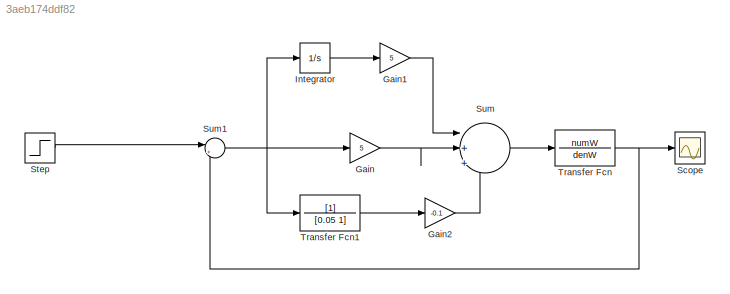
MODEL slx_3aeb174ddf82
KIND model
CONFIG AbsTol = auto
CONFIG EnableMultiTasking = off
CONFIG FixedStep = auto
CONFIG MaxStep = auto
CONFIG MinStep = auto
CONFIG RelTol = 1e-3
CONFIG SampleTimeConstraint = Unconstrained
CONFIG SolverName = VariableStepAuto
CONFIG StartTime = 0.0
CONFIG StopTime = 10.0
BLOCK [Gain] Gain
  Gain = 5
BLOCK [Gain] Gain1
  Gain = 5
BLOCK [Gain] Gain2
  Gain = -0.1
BLOCK [Integrator] Integrator
BLOCK [Scope] Scope
  ActiveDisplayYMaximum = 20.491741588524221
  ActiveDisplayYMinimum = -2.3505327164044716
  Floating = off
  GraphicalSettings = {"Style":{"BackgroundColor":[0.12941176470588237,0.12941176470588237,0.12941176470588237],"AxesColor":[0.07058823529411765,0.07058823529411765,0.07058823529411765],"LabelsColor":[0.8509803921568627,0.8509803921568627,0.8509803921568627],"PreserveColors":false,"Visible":[true],"LineStyle":["-"],"LineWidth":[1.5],"BarWidth":[0.9],"LineColor":["auto"],"LineFaceAlpha":[1],"LineEdgeAlpha":[1],"Marker":...<+2008ch>
  MultipleDisplayCache = [{"MaxYLimMag":20.491741588524221,"MaxYLimReal":20.491741588524221,"MinYLimMag":0,"MinYLimReal":-2.3505327164044716,"PlotAsMagnitudePhase":false,"ShowGrid":true,"ShowLegend":false,"Title":"%<SignalLabel>","YLabel":""}]
  NumInputPorts = 1
  ScopeFrameLocation = window
  WasSavedAsWebScope = on
  WindowPosition = [360.000000,150.000000,560.000000,420.000000,]
BLOCK [Step] Step
  After = 9
  Before = 6
  SampleTime = 0
BLOCK [Sum] Sum
  Inputs = |+++
BLOCK [Sum] Sum1
  Inputs = |+-
BLOCK [TransferFcn] Transfer Fcn
  Denominator = denW
  Numerator = numW
BLOCK [TransferFcn] Transfer Fcn1
  Denominator = [0.05 1]
LINE Gain1:1 -> Sum:1
LINE Gain2:1 -> Sum:3
LINE Gain:1 -> Sum:2
LINE Integrator:1 -> Gain1:1
LINE Step:1 -> Sum1:1
NET Sum1:1 -> Gain:1, Integrator:1, Transfer Fcn1:1
LINE Sum:1 -> Transfer Fcn:1
LINE Transfer Fcn1:1 -> Gain2:1
NET Transfer Fcn:1 -> Scope:1, Sum1:2
note: NET lines group one-source signal fan-out (src -> all destinations, sorted); 1:1 wires keep LINE
